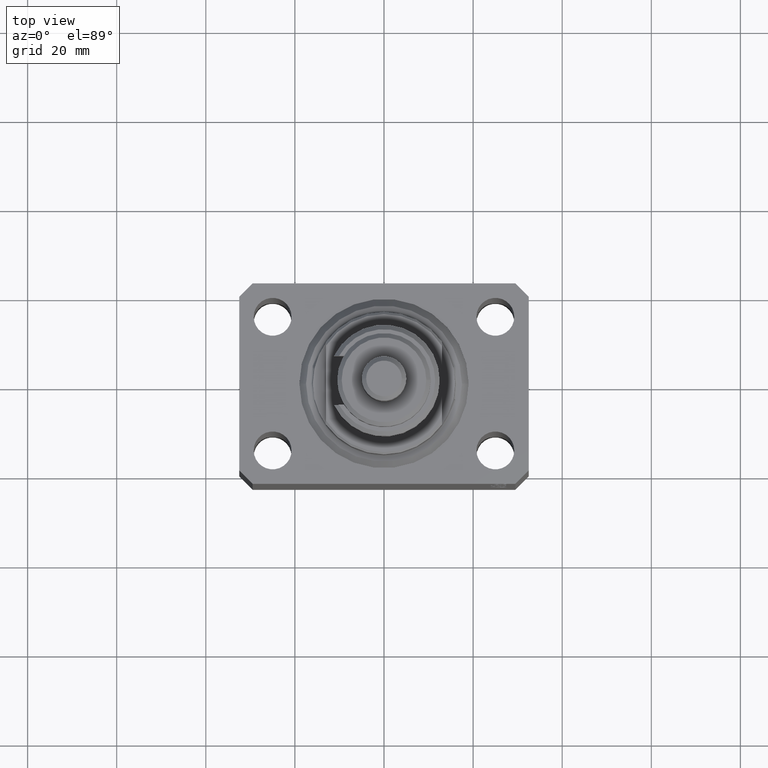
[diagram: clean part render]
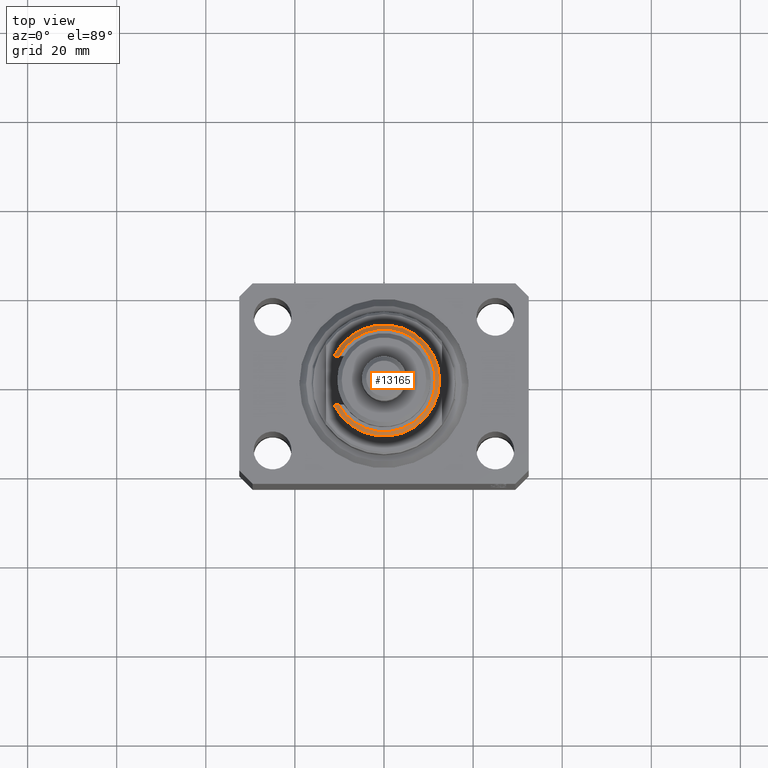
[diagram: same view with one face highlighted and labeled with its STEP entity id]
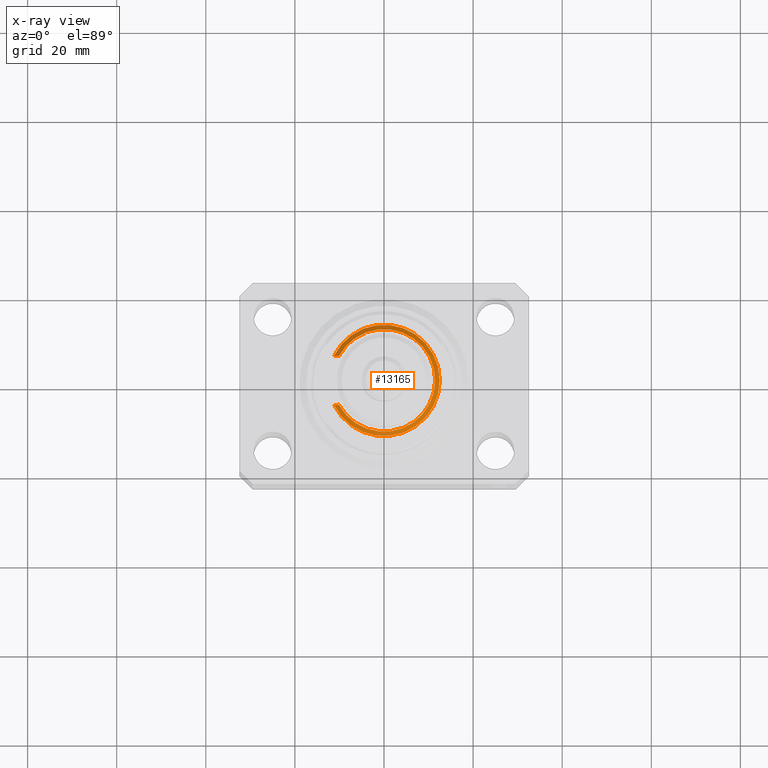
[diagram: x-ray of the same camera — body ghosted, the highlighted face saturated]
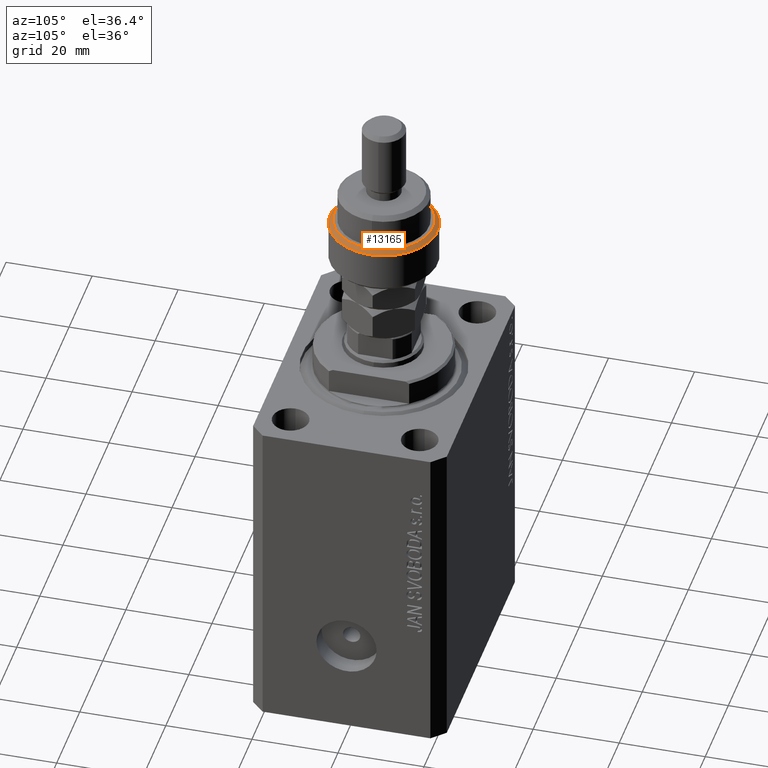
[diagram: same view with one face highlighted and labeled with its STEP entity id]
A machine part, top view. The second image highlights one B-rep face of the part: STEP entity #13165.
The next image is the same camera in x-ray: the body ghosted, the highlighted face saturated — about 0% of this face is hidden behind the body in this view.
A second angle (auxiliary view) of the same face is appended — the face is thin or edge-on in the first view.
In plain terms, the highlighted conical surface has half-angle 45 deg.
Its self-contained STEP definition (entity closure, byte-faithful):
#3290 = CARTESIAN_POINT ( 'NONE',  ( -10.47658324993067325, -5.500000000000000000, 10.66884310697076366 ) ) ;
#4202 = CARTESIAN_POINT ( 'NONE',  ( 0.000000000000000000, 0.000000000000000000, 11.00000000000000000 ) ) ;
#6151 = B_SPLINE_CURVE_WITH_KNOTS ( 'NONE', 3,
 ( #34103, #37930, #23778, #8869 ),
 .UNSPECIFIED., .F., .F.,
 ( 4, 4 ),
 ( 0.000000000000000000, 0.001505548560394443522 ),
 .UNSPECIFIED. ) ;
#7394 = EDGE_CURVE ( 'NONE', #39718, #24617, #6151, .T. ) ;
#8869 = CARTESIAN_POINT ( 'NONE',  ( -11.22497216032182443, 5.500000000000000000, 10.00000000000000000 ) ) ;
#8990 = EDGE_LOOP ( 'NONE', ( #44915, #18817, #21194, #15195 ) ) ;
#9390 = VERTEX_POINT ( 'NONE', #45776 ) ;
#12145 = FACE_OUTER_BOUND ( 'NONE', #8990, .T. ) ;
#13165 = ADVANCED_FACE ( 'NONE', ( #12145 ), #38859, .T. ) ;
#15195 = ORIENTED_EDGE ( 'NONE', *, *, #19884, .F. ) ;
#16381 = CIRCLE ( 'NONE', #35586, 12.50000000000000000 ) ;
#16429 = EDGE_CURVE ( 'NONE', #24617, #30294, #16381, .T. ) ;
#17366 = DIRECTION ( 'NONE',  ( 0.000000000000000000, 0.000000000000000000, -1.000000000000000000 ) ) ;
#18817 = ORIENTED_EDGE ( 'NONE', *, *, #16429, .F. ) ;
#18860 = DIRECTION ( 'NONE',  ( 0.000000000000000000, 0.000000000000000000, -1.000000000000000000 ) ) ;
#19217 = B_SPLINE_CURVE_WITH_KNOTS ( 'NONE', 3,
 ( #21568, #28314, #3290, #29019 ),
 .UNSPECIFIED., .F., .F.,
 ( 4, 4 ),
 ( 0.000000000000000000, 0.001505548560394440920 ),
 .UNSPECIFIED. ) ;
#19884 = EDGE_CURVE ( 'NONE', #9390, #39718, #37977, .T. ) ;
#21194 = ORIENTED_EDGE ( 'NONE', *, *, #7394, .F. ) ;
#21303 = CARTESIAN_POINT ( 'NONE',  ( 0.000000000000000000, 0.000000000000000000, 11.00000000000000000 ) ) ;
#21568 = CARTESIAN_POINT ( 'NONE',  ( -11.22497216032182088, -5.500000000000007105, 10.00000000000000000 ) ) ;
#23778 = CARTESIAN_POINT ( 'NONE',  ( -10.85157883450862037, 5.500000000000000000, 10.33530637496825655 ) ) ;
#24617 = VERTEX_POINT ( 'NONE', #40683 ) ;
#27285 = CARTESIAN_POINT ( 'NONE',  ( -11.22497216032182088, -5.500000000000007105, 10.00000000000000000 ) ) ;
#28037 = AXIS2_PLACEMENT_3D ( 'NONE', #21303, #32342, #46982 ) ;
#28314 = CARTESIAN_POINT ( 'NONE',  ( -10.85157883450861860, -5.500000000000007105, 10.33530637496825477 ) ) ;
#29019 = CARTESIAN_POINT ( 'NONE',  ( -10.09950493836208096, -5.500000000000000000, 11.00000000000000000 ) ) ;
#30294 = VERTEX_POINT ( 'NONE', #27285 ) ;
#32342 = DIRECTION ( 'NONE',  ( 0.000000000000000000, 0.000000000000000000, 1.000000000000000000 ) ) ;
#34103 = CARTESIAN_POINT ( 'NONE',  ( -10.09950493836208096, 5.500000000000000000, 11.00000000000000000 ) ) ;
#35586 = AXIS2_PLACEMENT_3D ( 'NONE', #42811, #17366, #35613 ) ;
#35613 = DIRECTION ( 'NONE',  ( 1.000000000000000000, 0.000000000000000000, 0.000000000000000000 ) ) ;
#37308 = AXIS2_PLACEMENT_3D ( 'NONE', #4202, #18860, #45039 ) ;
#37930 = CARTESIAN_POINT ( 'NONE',  ( -10.47658324993067325, 5.500000000000000000, 10.66884310697076188 ) ) ;
#37977 = CIRCLE ( 'NONE', #28037, 11.50000000000000355 ) ;
#38859 = CONICAL_SURFACE ( 'NONE', #37308, 11.50000000000000355, 0.7853981633974473908 ) ;
#39718 = VERTEX_POINT ( 'NONE', #44369 ) ;
#40478 = EDGE_CURVE ( 'NONE', #30294, #9390, #19217, .T. ) ;
#40683 = CARTESIAN_POINT ( 'NONE',  ( -11.22497216032182443, 5.500000000000000000, 10.00000000000000000 ) ) ;
#42811 = CARTESIAN_POINT ( 'NONE',  ( 0.000000000000000000, 0.000000000000000000, 10.00000000000000000 ) ) ;
#44369 = CARTESIAN_POINT ( 'NONE',  ( -10.09950493836208096, 5.500000000000000000, 11.00000000000000000 ) ) ;
#44915 = ORIENTED_EDGE ( 'NONE', *, *, #40478, .F. ) ;
#45039 = DIRECTION ( 'NONE',  ( -1.000000000000000000, 0.000000000000000000, 0.000000000000000000 ) ) ;
#45776 = CARTESIAN_POINT ( 'NONE',  ( -10.09950493836208096, -5.500000000000000000, 11.00000000000000000 ) ) ;
#46982 = DIRECTION ( 'NONE',  ( 1.000000000000000000, 0.000000000000000000, 0.000000000000000000 ) ) ;